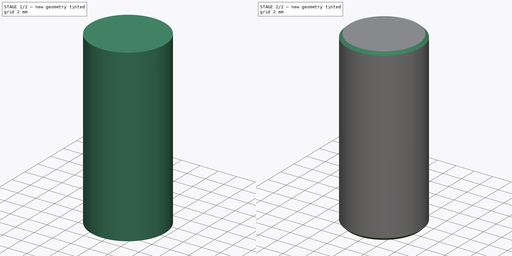
[diagram: build sequence overview — one tinted view per stage of 2, left to right]
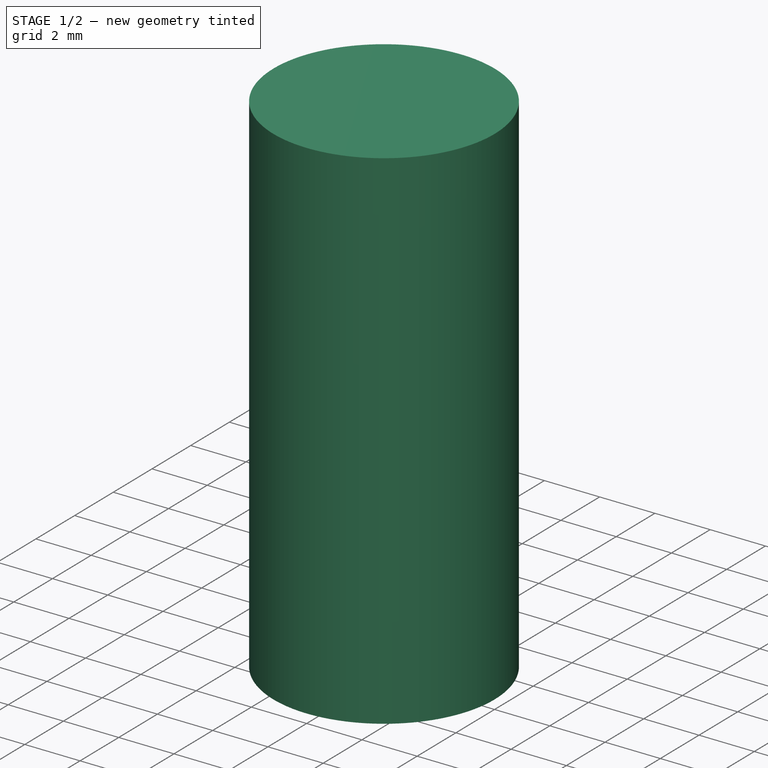
[diagram: stage 1 of 2 — iso view after this stage's code; geometry added in this stage tinted green]
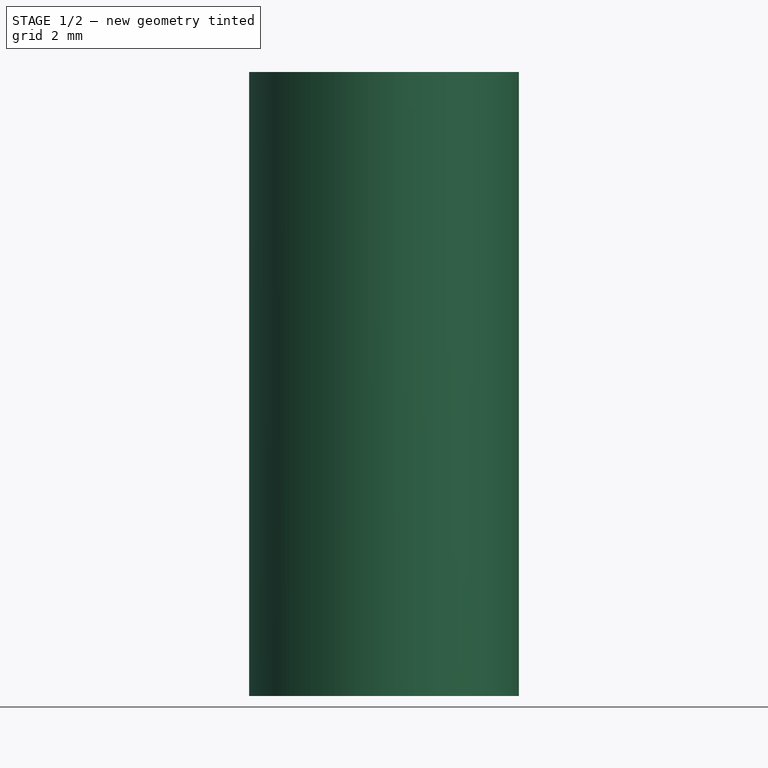
[diagram: stage 1 of 2 — front view after this stage's code; geometry added in this stage tinted green]
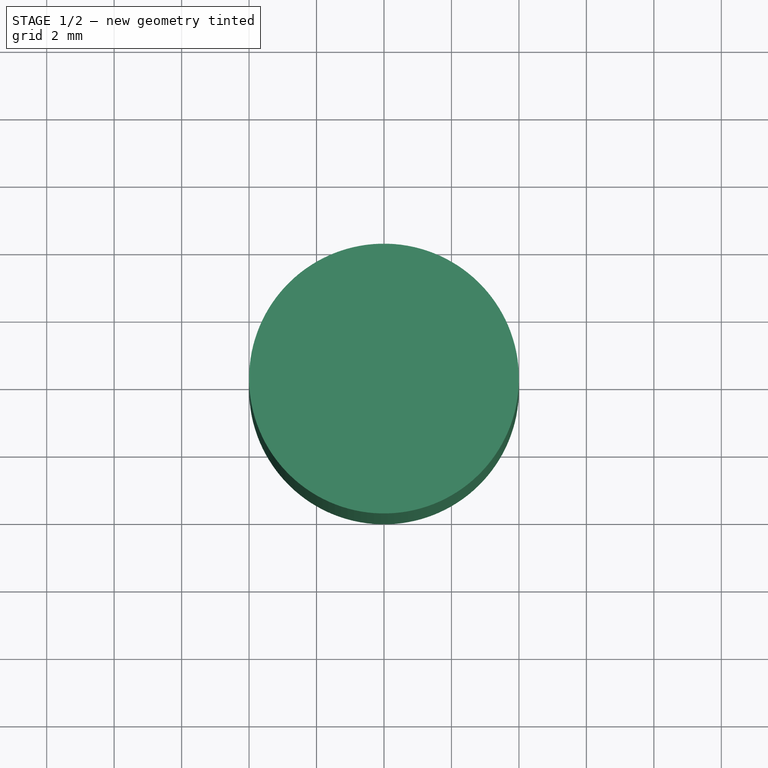
[diagram: stage 1 of 2 — top view after this stage's code; geometry added in this stage tinted green]
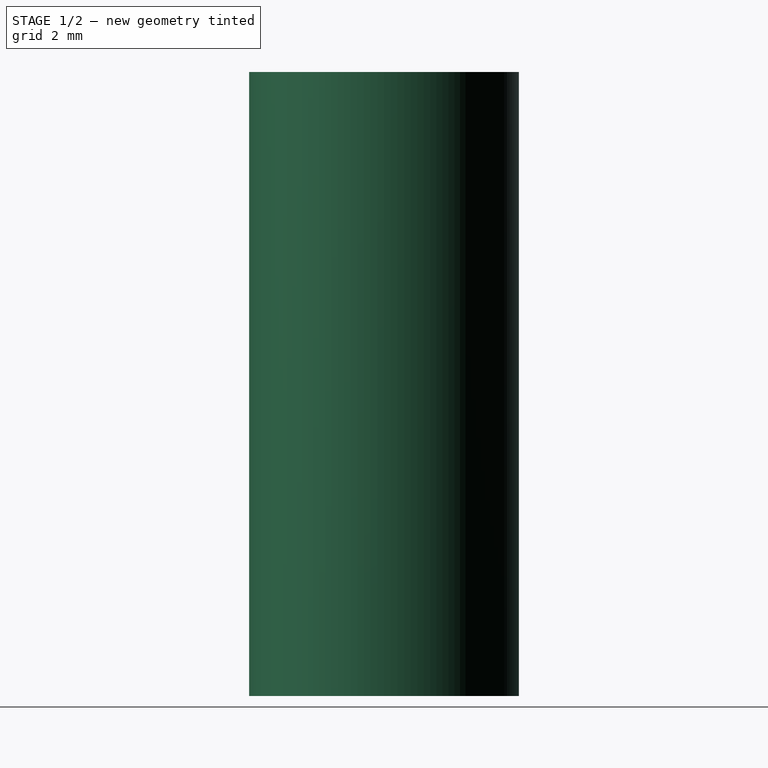
[diagram: stage 1 of 2 — right view after this stage's code; geometry added in this stage tinted green]
FCSTD DOCUMENT  (FreeCAD 0.17R7458 (Git))
Label: 8mmx18-19mm_rod_v0.1
License: All rights reserved
LicenseURL: http://en.wikipedia.org/wiki/All_rights_reserved
objects: Drawing::FeatureView×11, Drawing::FeatureViewPart×3, Sketcher::SketchObject×1, PartDesign::Pad×1, PartDesign::Chamfer×1, PartDesign::Body×1, Drawing::FeaturePage×1
note: 5 computed .brp shape members not serialized (recipe doc carries the construction recipe); baked Part::Feature solids carry a one-line shape summary decoded from their .brp

FEATURE [Sketcher::SketchObject] Sketch
  MapMode = 5
  Support = -> [XY_Plane]
  sketch-geometry (1):
    g0: Circle CenterX=0 CenterY=0 CenterZ=0 NormalX=0 NormalY=0 NormalZ=1 Radius=4
  constraints (2):
    c: Coincident(g0,g-1)
    c: Radius(g0) = 4
FEATURE [PartDesign::Pad] Pad
  Length = 18.5
  Length2 = 100
  Profile = -> Sketch
  Type = 0
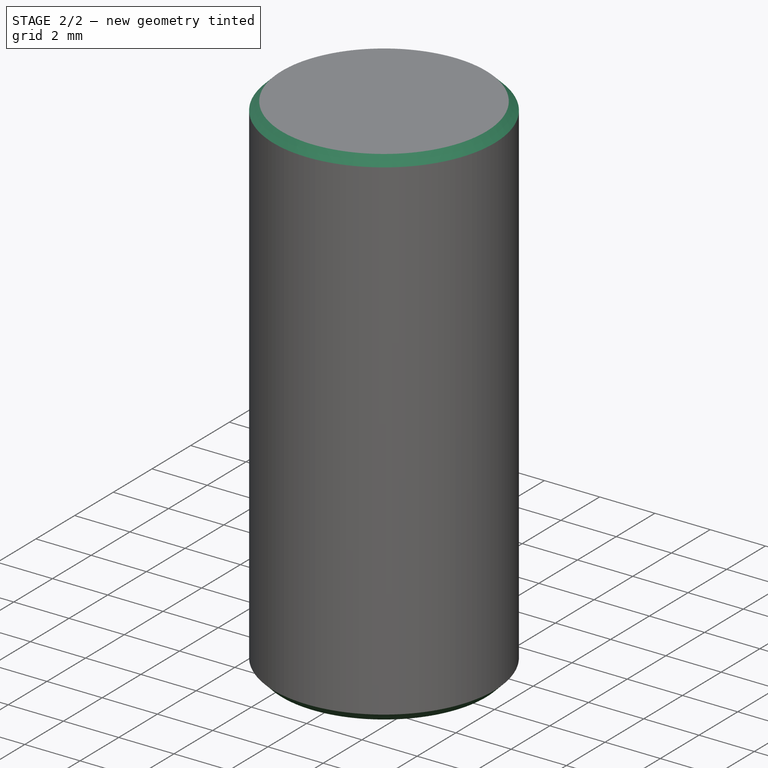
[diagram: stage 2 of 2 — iso view after this stage's code; geometry added in this stage tinted green]
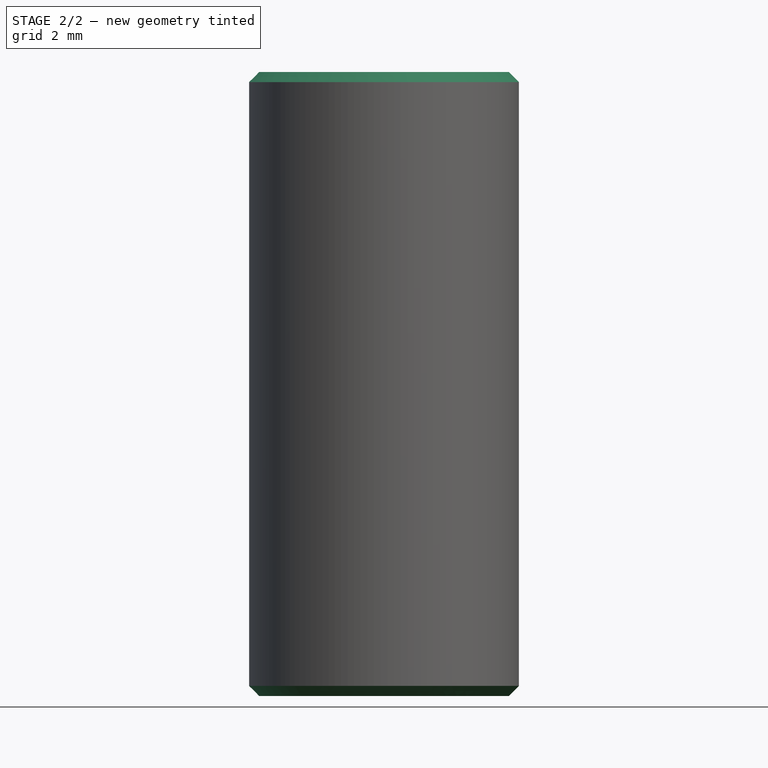
[diagram: stage 2 of 2 — front view after this stage's code; geometry added in this stage tinted green]
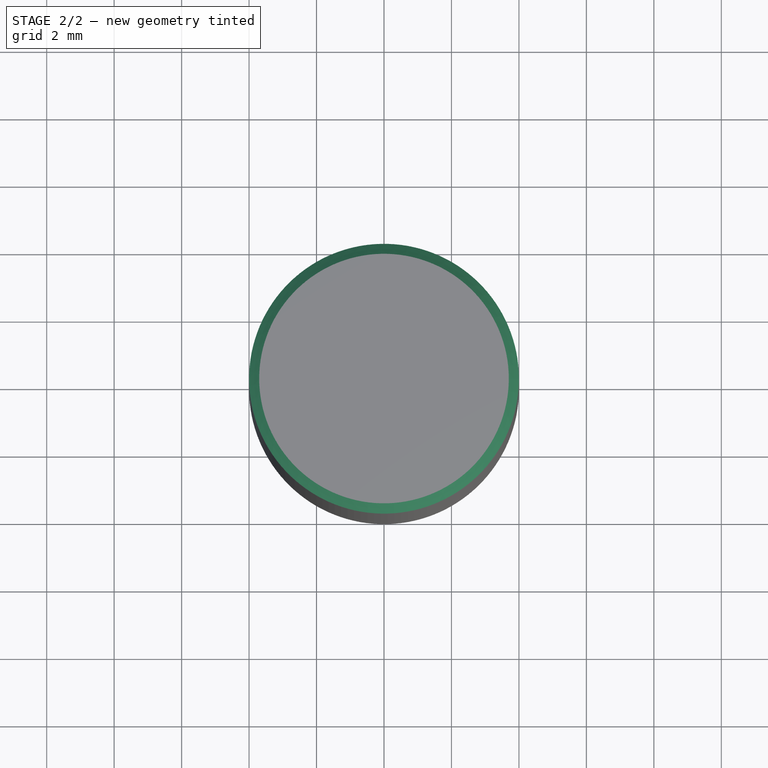
[diagram: stage 2 of 2 — top view after this stage's code; geometry added in this stage tinted green]
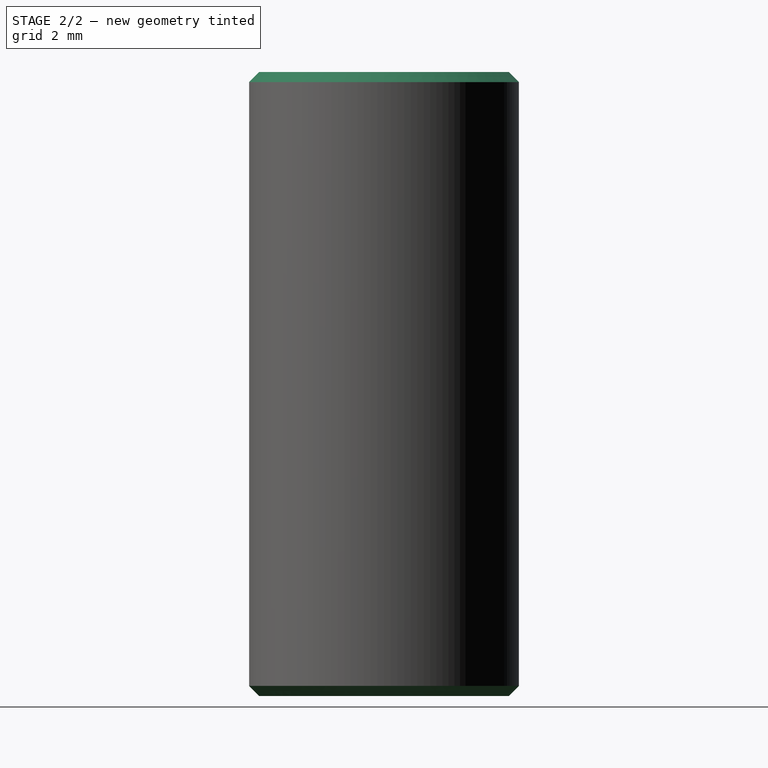
[diagram: stage 2 of 2 — right view after this stage's code; geometry added in this stage tinted green]
FEATURE [PartDesign::Chamfer] Chamfer
  Base = -> Pad [Edge3,Edge2]
  BaseFeature = -> Pad
  Size = 0.3
FEATURE [PartDesign::Body] Body
  Model = -> [Sketch,Pad,Chamfer]
  Origin = -> BodyOrigin
  Tip = -> Chamfer
FEATURE [Drawing::FeatureViewPart] Ortho  label="Ortho_0_0"
  Direction = (1,0,0)
  HiddenWidth = 0.15
  LineWidth = 0.35
  Rotation = -90
  Scale = 2
  ShowHiddenLines = false
  ShowSmoothLines = false
  Source = -> Body
  Tolerance = 0.05
  ViewResult = <blob: 2436 chars omitted>
  Visible = true
  X = 78.5
  Y = 120
FEATURE [Drawing::FeatureViewPart] Ortho001  label="Ortho_0_1"
  Direction = (0,0,1)
  HiddenWidth = 0.15
  LineWidth = 0.35
  Rotation = 90
  Scale = 2
  ShowHiddenLines = false
  ShowSmoothLines = false
  Source = -> Body
  Tolerance = 0.05
  ViewResult = <g id="Ortho_0_1"\n   transform="rotate(90,78.5,32.0768) translate(78.5,32.0768) scale(2,2)"\n  >\n<g   stroke="rgb(0, 0, 0)"\n   stroke-width="0.175"\n   stroke-linecap="butt"\n   stroke-linejoin="miter"\n   fill="none"\n   transform="scale(1,-1)"\n  >\n<circle cx ="0" cy ="0" r ="4" /><circle cx ="0" cy ="0" r ="3.7" /></g>\n</g>
  Visible = true
  X = 78.5
  Y = 32.0768
FEATURE [Drawing::FeatureViewPart] View
  Direction = (1,2,1)
  HiddenWidth = 0.15
  LineWidth = 0.35
  Rotation = 0
  Scale = 2
  ShowHiddenLines = false
  ShowSmoothLines = false
  Source = -> Body
  Tolerance = 0.05
  ViewResult = <g id="View"\n   transform="rotate(0,20,180) translate(20,180) scale(2,2)"\n  >\n<g   stroke="rgb(0, 0, 0)"\n   stroke-width="0.175"\n   stroke-linecap="butt"\n   stroke-linejoin="miter"\n   fill="none"\n   transform="scale(1,-1)"\n  >\n<path id= "1" d=" M 17.0786 0.596333 L 1.06833 3.86441 " />\n<path id= "2" d=" M 15.4786 -7.24203 L -0.531672 -3.97396 " />\n<path id= "3" d=" M -1.32375 -3.10741 L -1.16276 -3.41414 " />\n<path id= "4" d=" M 16.5469 -6.75524 L 16.2786 -6.97433 " />\n<path id= "5" d=" M 17.8707 -0.27021 L 17.7097 0.0365148 " />\n</g>\n<g   stroke="rgb(0, 0, 0)"\n   stroke-width="0.175"\n   stroke-linecap="butt"\n   stroke-linejoin="miter"\n   fill="none"\n   transform="scale(1,-1)"\n  >\n<path d="M0.268328 3.59671 A4 1.63299 -101.537 0 1 -1.16276 -3.41414" />\n<path d="M-1.16276 -3.41414 A4 1.63299 -101.537 0 1 -0.531672 -3.97396" />\n<path d="M1.06833 3.86441 A4 1.63299 -101.537 0 1 0.268328 3.59671" />\n<path d="M16.2786 0.328634 A4 1.63299 -101.537 0 1 15.4786 -7.24203" />\n<path d="M15.4786 -7.24203 A4 1.63299 -101.537 0 1 16.2786 -6.97433" />\n<path d="M17.7097 0.0365148 A4 1.63299 -101.537 0 1 17.0786 0.596333" />\n<path d="M17.0786 0.596333 A4 1.63299 -101.537 0 1 16.2786 0.328634" />\n<path id= "8" d=" M 0.268328 3.59671 L 0 3.37762 " />\n<path d="M1.11022e-16 3.37762 A3.7 1.51052 -101.537 0 1 -1.32375 -3.10741" />\n<path d="M16.5469 4.44089e-16 A3.7 1.51052 -101.537 0 1 16.5469 -6.75524" />\n<path d="M16.5469 -6.75524 A3.7 1.51052 -101.537 0 1 17.8707 -0.27021" />\n<path d="M17.8707 -0.27021 A3.7 1.51052 -101.537 0 1 16.5469 4.44089e-16" />\n</g>\n</g>
  Visible = true
  X = 20
  Y = 180
FEATURE [Drawing::FeatureView] dimText004
  Rotation = 0
  ViewResult = <g> <text x="165.000000" y="70.000000" font-family="inherit" font-size="4" fill="rgb(0,0,0)" text-anchor="inherit" transform="rotate(0.000000 165.000000,70.000000)" >Notes</text> </g>
  Visible = true
  X = 0
  Y = 0
FEATURE [Drawing::FeatureView] dimText005
  Rotation = 0
  ViewResult = <g> <text x="165.000000" y="75.000000" font-family="inherit" font-size="3" fill="rgb(0,0,0)" text-anchor="inherit" transform="rotate(0.000000 165.000000,75.000000)" >1. All parts must be RoHS compliant</text> </g>
  Visible = true
  X = 0
  Y = 0
FEATURE [Drawing::FeatureView] dimText006
  Rotation = 0
  ViewResult = <g> <text x="165.000000" y="80.000000" font-family="inherit" font-size="3" fill="rgb(0,0,0)" text-anchor="inherit" transform="rotate(0.000000 165.000000,80.000000)" >2. Material: 304 Stainless Steel</text> </g>
  Visible = true
  X = 0
  Y = 0
FEATURE [Drawing::FeatureView] dimText007
  Rotation = 0
  ViewResult = <g> <text x="165.000000" y="85.000000" font-family="inherit" font-size="3" fill="rgb(0,0,0)" text-anchor="inherit" transform="rotate(0.000000 165.000000,85.000000)" >3. Parts must be free of burrs and sharp edges</text> </g>
  Visible = true
  X = 0
  Y = 0
FEATURE [Drawing::FeatureView] dimText008
  Rotation = 0
  ViewResult = <g> <text x="165.000000" y="90.000000" font-family="inherit" font-size="3" fill="rgb(0,0,0)" text-anchor="inherit" transform="rotate(0.000000 165.000000,90.000000)" >4. Rods must be consistently smooth and not contain pits or gouges</text> </g>
  Visible = true
  X = 0
  Y = 0
FEATURE [Drawing::FeatureView] dimText009
  Rotation = 0
  ViewResult = <g> <text x="165.000000" y="95.000000" font-family="inherit" font-size="3" fill="rgb(0,0,0)" text-anchor="inherit" transform="rotate(0.000000 165.000000,95.000000)" >5. Surface finish Ra 0.3</text> </g>
  Visible = true
  X = 0
  Y = 0
FEATURE [Drawing::FeatureView] dim001
  Rotation = 0
  ViewResult = <g> \n  <line x1="86.285560" y1="83.000000" x2="101.000000" y2="83.000000" style="stroke:rgb(0,0,255);stroke-width:0.20" />\n<line x1="85.113820" y1="120.000000" x2="101.000000" y2="120.000000" style="stroke:rgb(0,0,255);stroke-width:0.20" />\n<line x1="100.000000" y1="83.000000" x2="100.000000" y2="120.000000" style="stroke:rgb(0,0,255);stroke-width:0.20" /> \n  <polygon points="100.000000,120.000000 100.750000,117.000000 100.000000,117.000000 99.250000,117.000000" style="fill:rgb(0,0,255);stroke:rgb(0,0,255);stroke-width:0" /><polygon points="100.000000,83.000000 99.250000,86.000000 100.000000,86.000000 100.750000,86.000000" style="fill:rgb(0,0,255);stroke:rgb(0,0,255);stroke-width:0" /> \n  <text x="99.000000" y="101.500000" font-family="Verdana" font-size="3" fill="rgb(0,0,0)" text-anchor="middle" transform="rotate(-90.000000 99.000000,101.500000)" >18.5</text> </g>
  Visible = true
  X = 0
  Y = 0
FEATURE [Drawing::FeatureView] dimText001
  Rotation = 0
  ViewResult = <g > <text x="99.000000" y="90.000000" font-family="Verdana" font-size="2.4" fill="rgb(0,0,0)" text-anchor="end" transform="rotate(-90.000000 99.000000,90.000000)" >-0.5</text> \n <text x="96.600000" y="90.000000" font-family="Verdana" font-size="2.4" fill="rgb(0,0,0)" text-anchor="end" transform="rotate(-90.000000 96.600000,90.000000)" >+0.5</text> </g> 
  Visible = true
  X = 0
  Y = 0
FEATURE [Drawing::FeatureView] dim002
  Rotation = 0
  ViewResult = <g>  <circle cx ="78.500000" cy ="32.076800" r="0.500000" stroke="none" fill="rgb(0,0,255)" /> \n<line x1="95.000000" y1="45.000000" x2="72.201842" y2="27.143930" style="stroke:rgb(0,0,255);stroke-width:0.20" />\n<polygon points="84.798158,37.009670 82.898805,34.569391 82.436349,35.159844 81.973892,35.750296" style="fill:rgb(0,0,255);stroke:rgb(0,0,255);stroke-width:0" />\n<polygon points="72.201842,27.143930 74.101195,29.584209 74.563651,28.993756 75.026108,28.403304" style="fill:rgb(0,0,255);stroke:rgb(0,0,255);stroke-width:0" />\n<line x1="95.000000" y1="45.000000" x2="130.000000" y2="45.000000" style="stroke:rgb(0,0,255);stroke-width:0.20" />\n<text x="110.107439" y="43.864973" font-family="Verdana" font-size="3" fill="rgb(0,0,0)" text-anchor="middle"  >Ø8</text> </g>
  Visible = true
  X = 0
  Y = 0
FEATURE [Drawing::FeatureView] dimText002
  Rotation = 0
  ViewResult = <g > <text x="120.000000" y="44.000000" font-family="Verdana" font-size="2.4" fill="rgb(0,0,0)" text-anchor="end"  >-0.03</text> \n <text x="120.000000" y="41.600000" font-family="Verdana" font-size="2.4" fill="rgb(0,0,0)" text-anchor="end"  >+0.0</text> </g> 
  Visible = true
  X = 0
  Y = 0
FEATURE [Drawing::FeatureView] dimText003
  Rotation = 0
  ViewResult = <g> <text x="25.824871" y="9.091902" font-family="inherit" font-size="2.75" fill="rgb(0,0,0)" text-anchor="inherit" transform="rotate(0.000000 25.824871,9.091902)" >6</text> </g>
  Visible = true
  X = 0
  Y = 0
FEATURE [Drawing::FeaturePage] Page
  EditableTexts = bam | 4/25/16 | 2:1 | 8mm Smooth Rod, SS, 18-19mm | IR | HD-RD0004 | 1 of 1 | See Notes
  Group = -> [Ortho,Ortho001,View,dimText004,dimText005,dimText006,dimText007,dimText008,dimText009,dim001,dimText001,dim002,dimText002,dimText003]
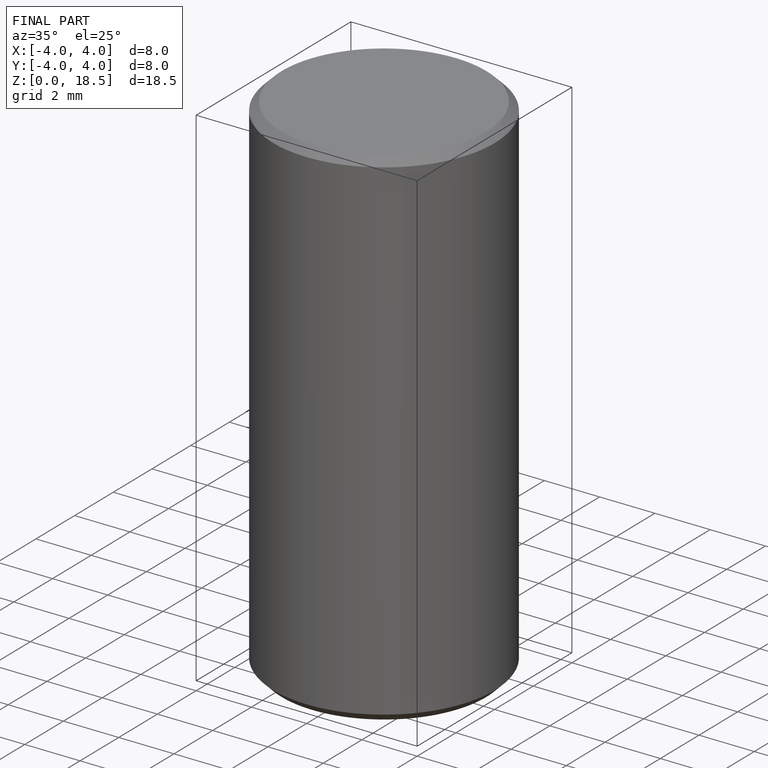
[diagram: finished part — iso view with bounding-box wireframe]
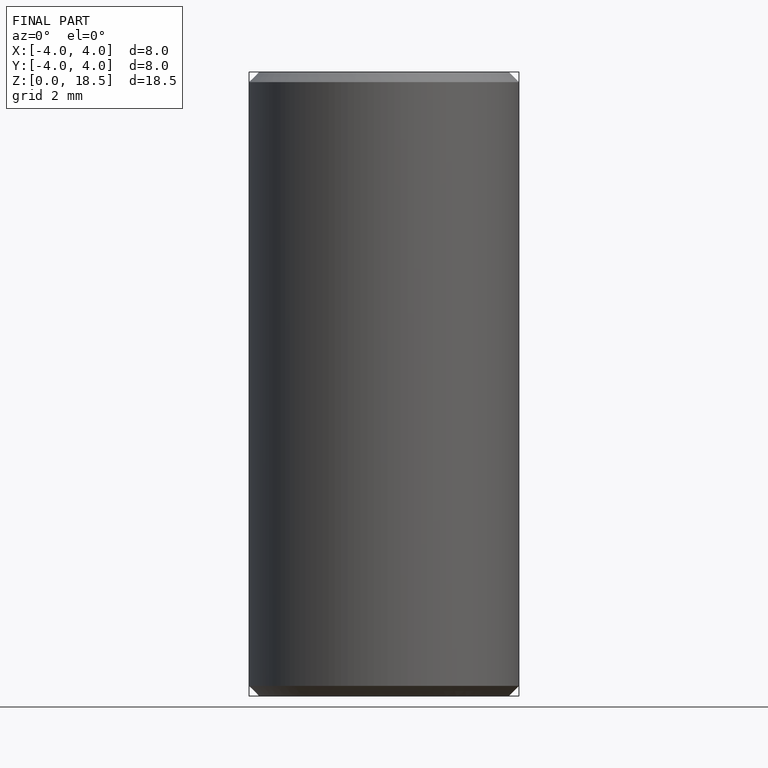
[diagram: finished part — front view with bounding-box wireframe]
